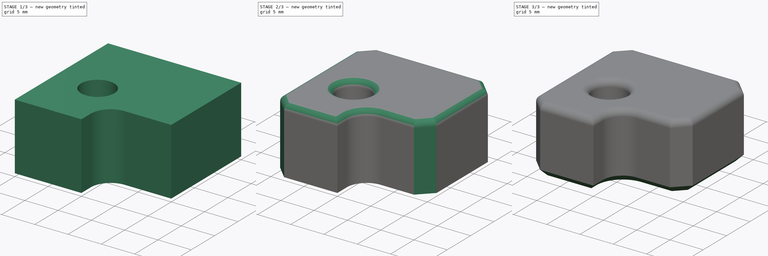
[diagram: build sequence overview — one tinted view per stage of 3, left to right]
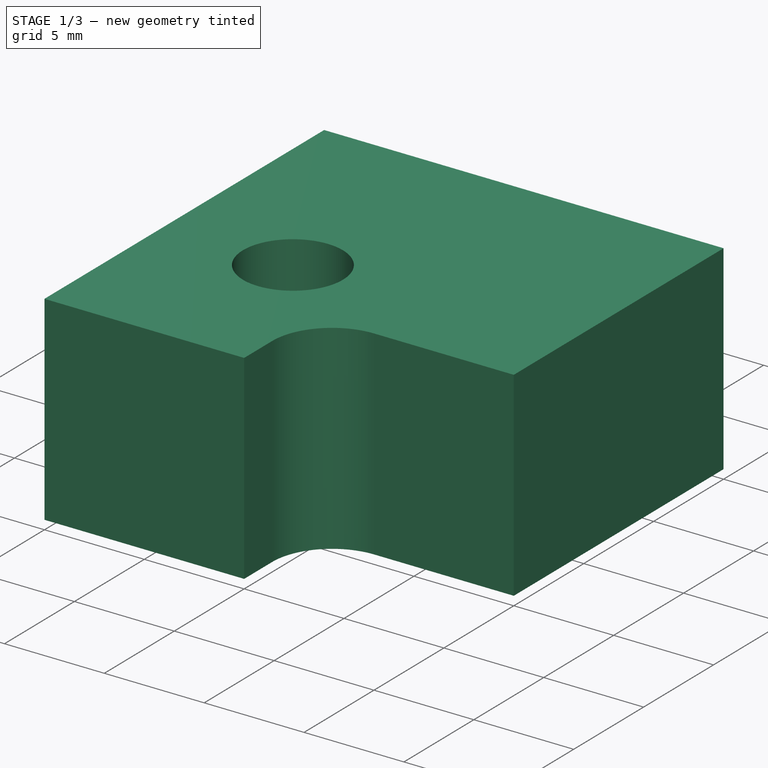
[diagram: stage 1 of 3 — iso view after this stage's code; geometry added in this stage tinted green]
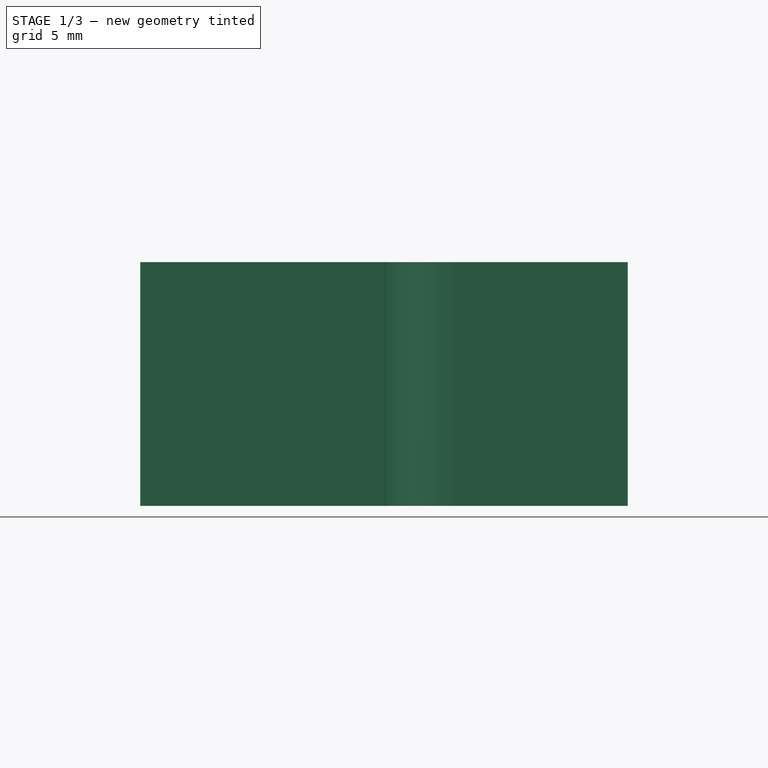
[diagram: stage 1 of 3 — front view after this stage's code; geometry added in this stage tinted green]
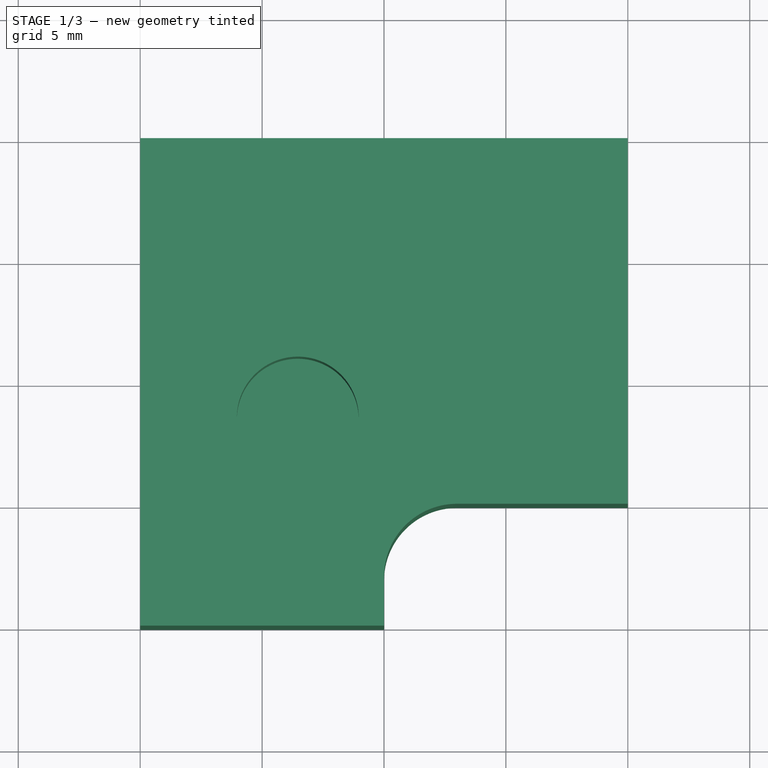
[diagram: stage 1 of 3 — top view after this stage's code; geometry added in this stage tinted green]
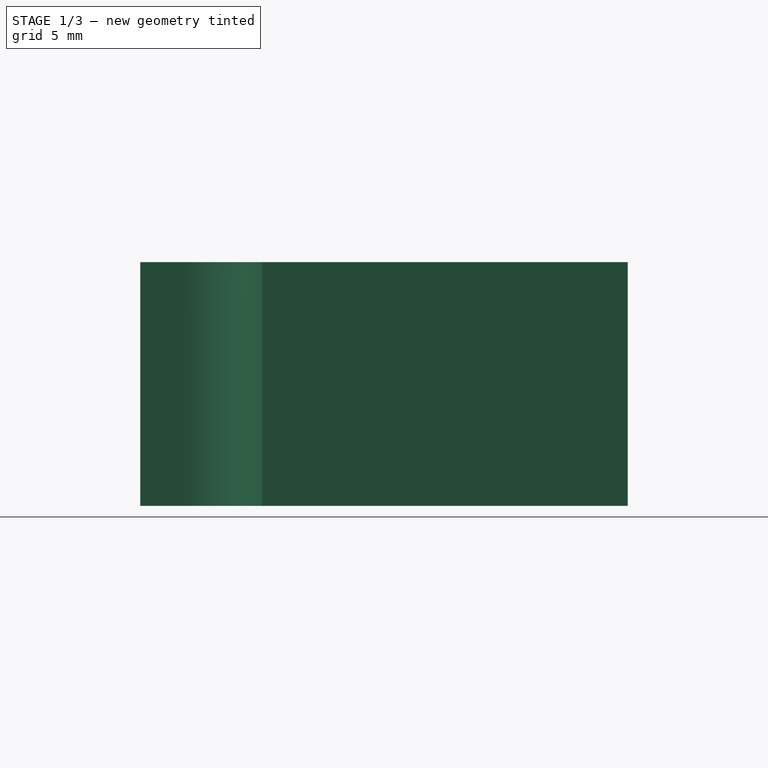
[diagram: stage 1 of 3 — right view after this stage's code; geometry added in this stage tinted green]
FCSTD DOCUMENT  (FreeCAD 0.18R15841 (Git))
Label: Test_Block_00
License: All rights reserved
LicenseURL: http://en.wikipedia.org/wiki/All_rights_reserved
objects: Sketcher::SketchObject×4, PartDesign::Chamfer×3, PartDesign::Pocket×2, PartDesign::CoordinateSystem×2, PartDesign::Fillet×2, PartDesign::Pad×1, App::DocumentObjectGroup×1, PartDesign::Body×1, App::Part×1
note: 18 computed .brp shape members not serialized (recipe doc carries the construction recipe); baked Part::Feature solids carry a one-line shape summary decoded from their .brp

FEATURE [Sketcher::SketchObject] Sketch
  MapMode = 5
  Support = -> [XY_Plane001]
  sketch-geometry (6):
    g0: LineSegment StartX=0 StartY=-2e-16 StartZ=0 EndX=0 EndY=20 EndZ=0
    g1: LineSegment StartX=0 StartY=20 StartZ=0 EndX=20 EndY=20 EndZ=0
    g2: LineSegment StartX=20 StartY=20 StartZ=0 EndX=20 EndY=5 EndZ=0
    g3: LineSegment StartX=20 StartY=5 StartZ=0 EndX=10 EndY=5 EndZ=0
    g4: LineSegment StartX=10 StartY=5 StartZ=0 EndX=10 EndY=0 EndZ=0
    g5: LineSegment StartX=10 StartY=-2e-16 StartZ=0 EndX=0 EndY=-2e-16 EndZ=0
  constraints (17):
    c: Coincident(g-1,g0)
    c: PointOnObject(g0,g-2)
    c: Coincident(g0,g1)
    c: Horizontal(g1)
    c: Coincident(g1,g2)
    c: Vertical(g2)
    c: Coincident(g2,g3)
    c: Horizontal(g3)
    c: Coincident(g3,g4)
    c: Vertical(g4)
    c: Coincident(g4,g5)
    c: Coincident(g5,g0)
    c: Horizontal(g5)
    c: DistanceX(g5,g5) = 10
    c: DistanceY(g0,g0) = 20
    c: DistanceY(g2,g2) = 15
    c: DistanceX(g1,g1) = 20
FEATURE [PartDesign::Pad] Pad
  ClaimChildren = false
  Length = 10
  Length2 = 100
  Profile = -> Sketch
  Type = 0
FEATURE [Sketcher::SketchObject] Sketch001
  ExternalGeometry = -> [Pad]
  MapMode = 5
  Placement = pos=(0,0,10) rot=(0,0,1;0rad)
  Support = -> [Pad]
  sketch-geometry (2):
    g0: Circle CenterX=6.46447 CenterY=8.53553 CenterZ=0 NormalX=0 NormalY=0 NormalZ=1 AngleXU=0 Radius=2.5
    g1: LineSegment [constr] StartX=6.46447 StartY=8.53553 StartZ=0 EndX=10 EndY=5 EndZ=0
  constraints (5):
    c: Coincident(g1,g0)
    c: Coincident(g1,g-3)
    c: Radius(g0) = 2.5
    c: Angle(g1,g-3) = 2.35619
    c: Distance(g1) = 5
FEATURE [PartDesign::Pocket] Pocket
  BaseFeature = -> Pad
  ClaimChildren = false
  Length = 5
  Length2 = 100
  Profile = -> Sketch001
  Type = 0
FEATURE [Sketcher::SketchObject] Sketch002
  ExternalGeometry = -> [Pocket]
  MapMode = 5
  Placement = pos=(0,0,5) rot=(0,0,1;0rad)
  Support = -> [Pocket]
  sketch-geometry (2):
    g0: LineSegment StartX=6.46447 StartY=8.53553 StartZ=0 EndX=8.46447 EndY=8.53553 EndZ=0
    g1: LineSegment StartX=6.46447 StartY=8.53553 StartZ=0 EndX=6.46447 EndY=9.53553 EndZ=0
  constraints (6):
    c: Coincident(g0,g-3)
    c: Horizontal(g0)
    c: Coincident(g1,g0)
    c: Vertical(g1)
    c: DistanceX(g0,g0) = 2
    c: DistanceY(g1,g1) = 1
FEATURE [App::DocumentObjectGroup] Constraints
FEATURE [PartDesign::CoordinateSystem] LCS_0
  AttacherType = Attacher::AttachEngine3D
FEATURE [PartDesign::CoordinateSystem] LCS_1
  AttacherType = Attacher::AttachEngine3D
  MapMode = 49
  Placement = pos=(6.46447,8.53553,5) rot=(0,0,1;0rad)
  Support = -> [Sketch002]
FEATURE [PartDesign::Fillet] Fillet
  Base = -> Pocket [Edge18]
  BaseFeature = -> Pocket
  Radius = 3
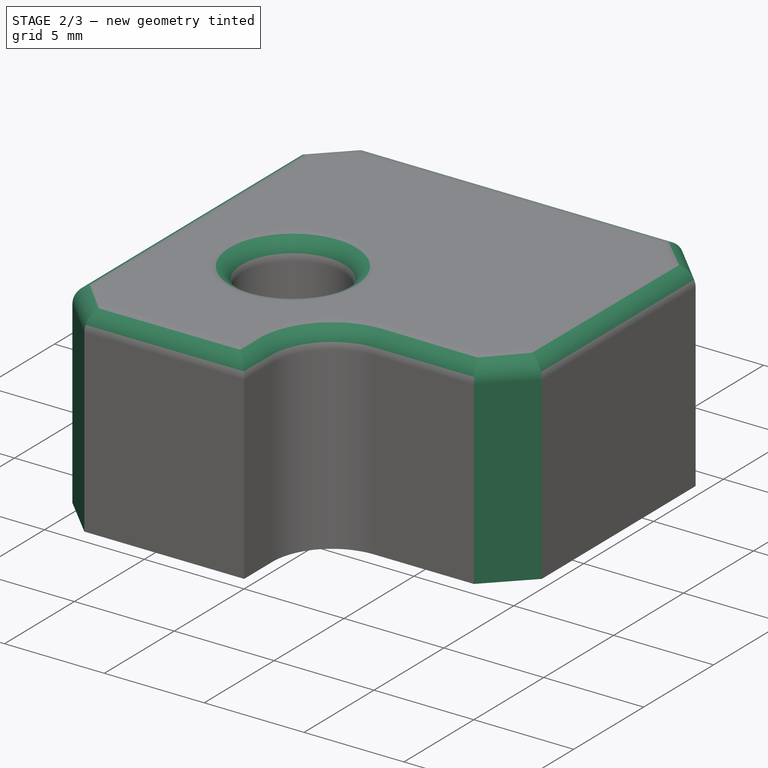
[diagram: stage 2 of 3 — iso view after this stage's code; geometry added in this stage tinted green]
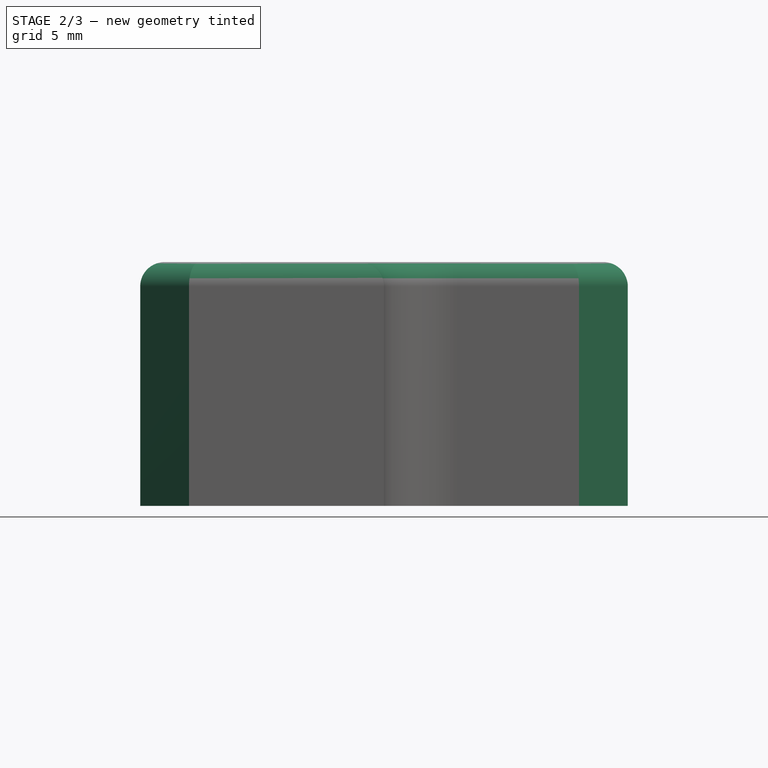
[diagram: stage 2 of 3 — front view after this stage's code; geometry added in this stage tinted green]
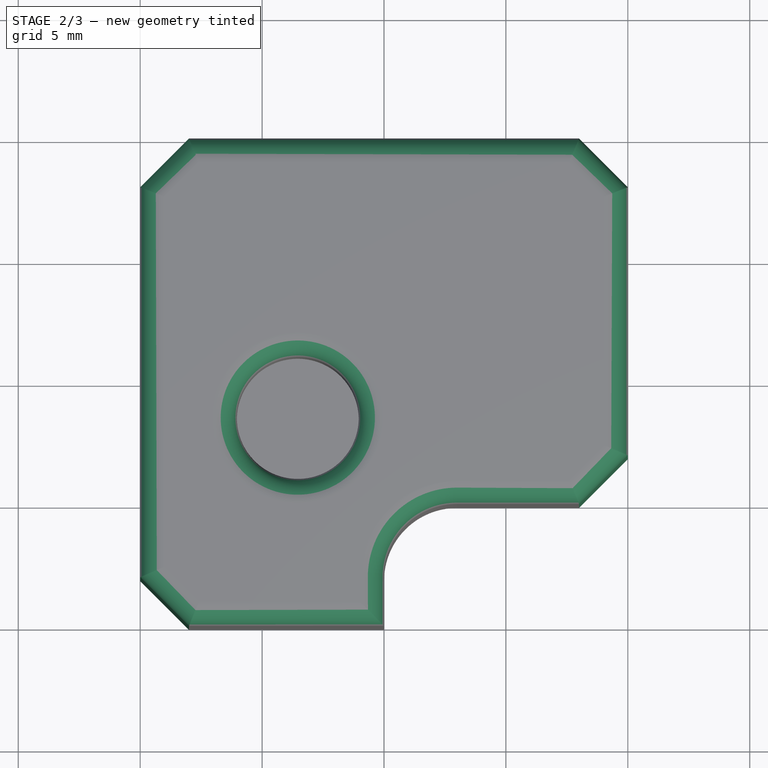
[diagram: stage 2 of 3 — top view after this stage's code; geometry added in this stage tinted green]
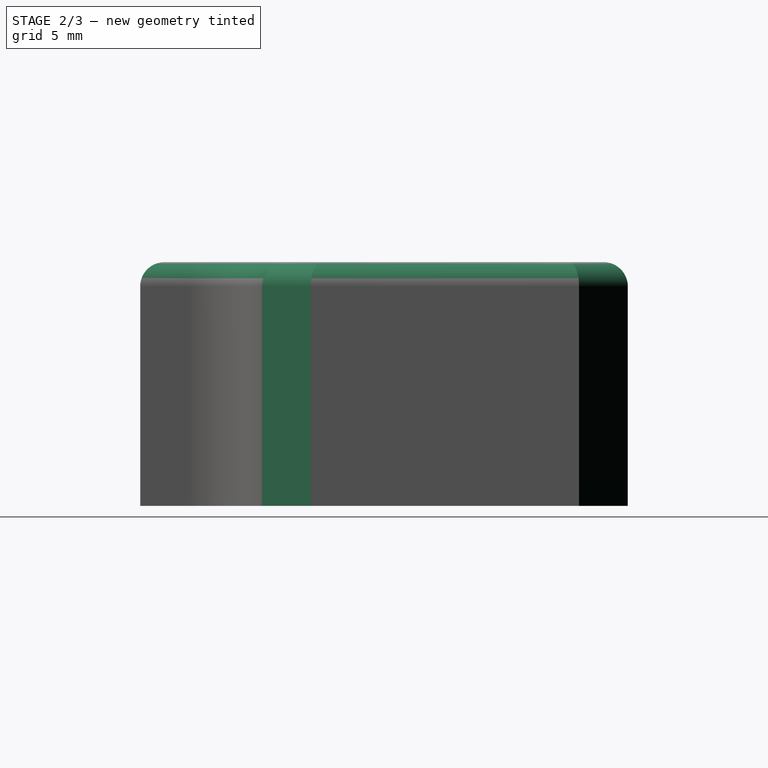
[diagram: stage 2 of 3 — right view after this stage's code; geometry added in this stage tinted green]
FEATURE [PartDesign::Chamfer] Chamfer
  Base = -> Fillet [Edge19,Edge9,Edge13,Edge17]
  BaseFeature = -> Fillet
  Size = 2
FEATURE [PartDesign::Fillet] Fillet001
  Base = -> Chamfer [Face13]
  BaseFeature = -> Chamfer
  Radius = 1
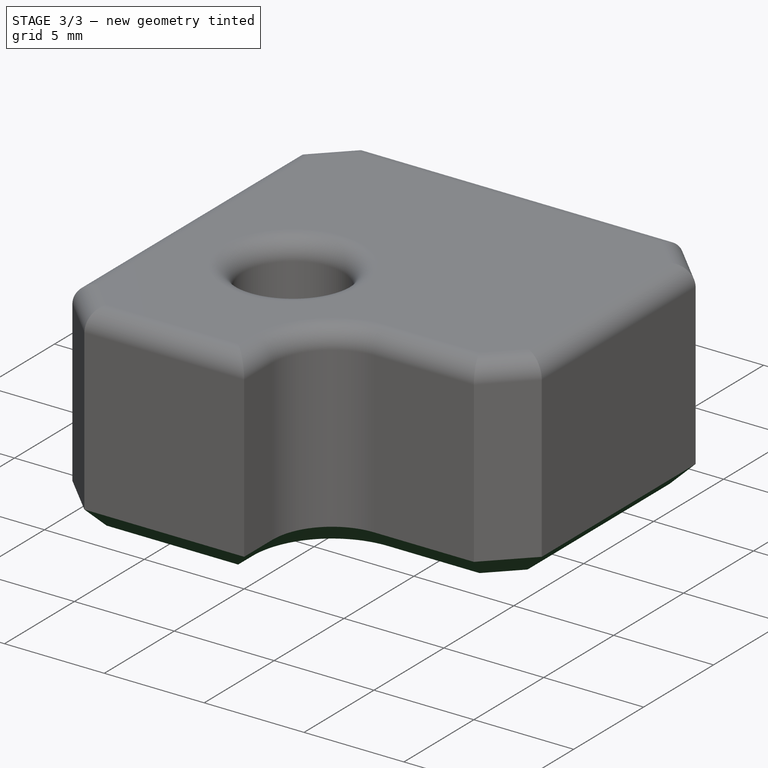
[diagram: stage 3 of 3 — iso view after this stage's code; geometry added in this stage tinted green]
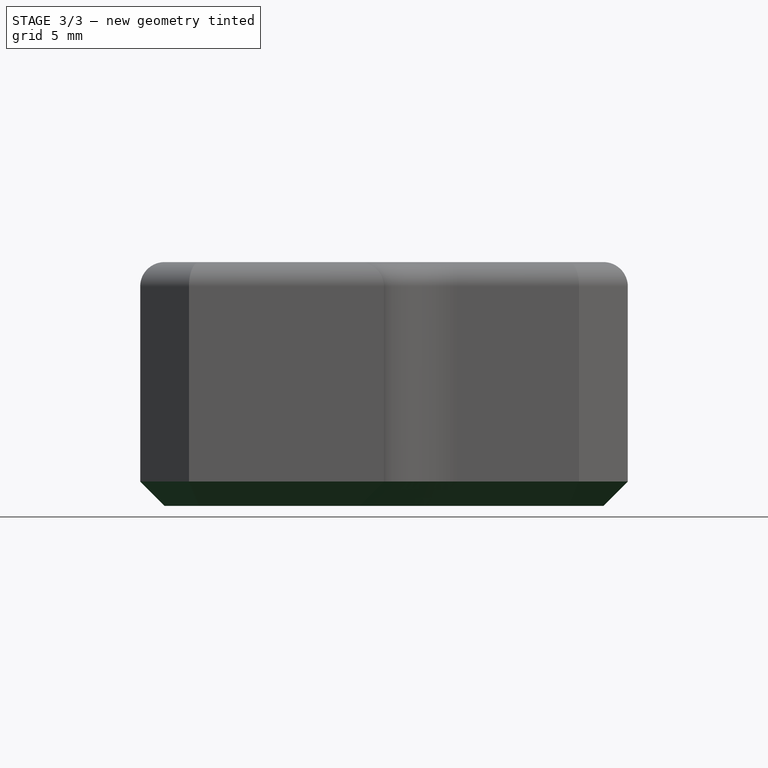
[diagram: stage 3 of 3 — front view after this stage's code; geometry added in this stage tinted green]
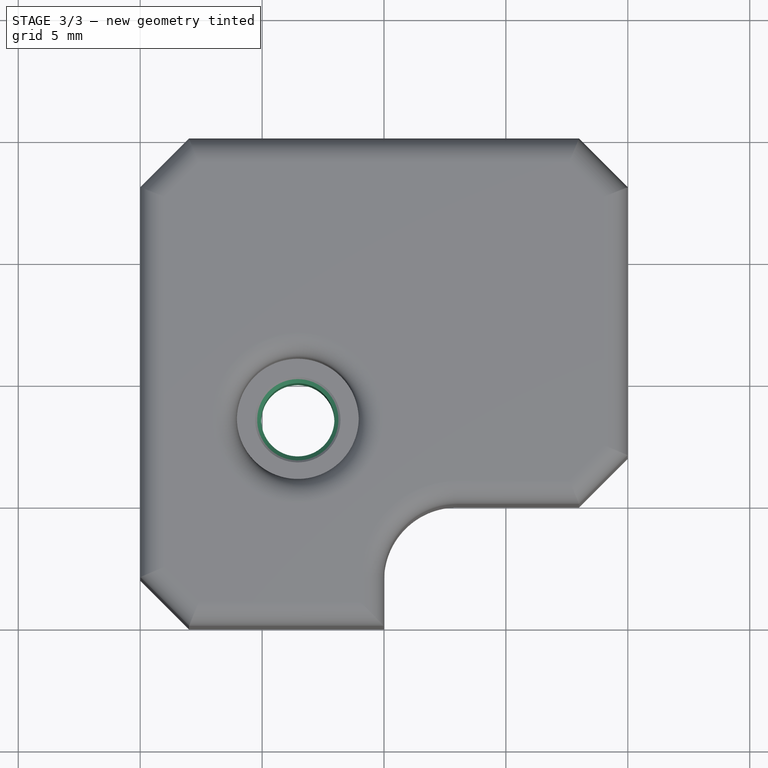
[diagram: stage 3 of 3 — top view after this stage's code; geometry added in this stage tinted green]
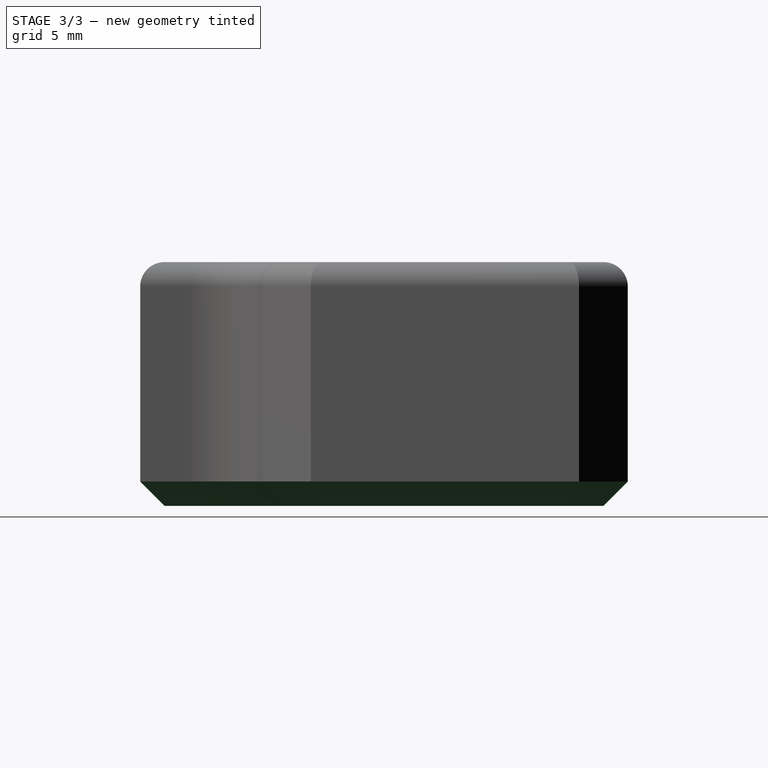
[diagram: stage 3 of 3 — right view after this stage's code; geometry added in this stage tinted green]
FEATURE [PartDesign::Chamfer] Chamfer001
  Base = -> Fillet001 [Face4]
  BaseFeature = -> Fillet001
  Size = 1
FEATURE [Sketcher::SketchObject] Sketch003
  ExternalGeometry = -> [Chamfer001]
  MapMode = 5
  Placement = pos=(0,0,0) rot=(1,0,0;3.14159rad)
  Support = -> [Chamfer001]
  sketch-geometry (1):
    g0: Circle CenterX=6.46447 CenterY=-8.53553 CenterZ=0 NormalX=0 NormalY=0 NormalZ=1 AngleXU=0 Radius=1.5
  constraints (2):
    c: Coincident(g0,g-3)
    c: Radius(g0) = 1.5
FEATURE [PartDesign::Pocket] Pocket001
  BaseFeature = -> Chamfer001
  ClaimChildren = false
  Length = 5
  Length2 = 100
  Profile = -> Sketch003
  Type = 2
FEATURE [PartDesign::Chamfer] Chamfer002
  Base = -> Pocket001 [Edge33,Edge66]
  BaseFeature = -> Pocket001
  Size = 0.25
FEATURE [PartDesign::Body] Body
  Group = -> [Sketch,Pad,Sketch001,Pocket,Sketch002,Fillet,Chamfer,Fillet001,Chamfer001,Sketch003,Pocket001,Chamfer002]
  Origin = -> Origin001
  Tip = -> Chamfer002
FEATURE [App::Part] Model
  Group = -> [Constraints,LCS_0,Body,LCS_1]
  Origin = -> Origin002
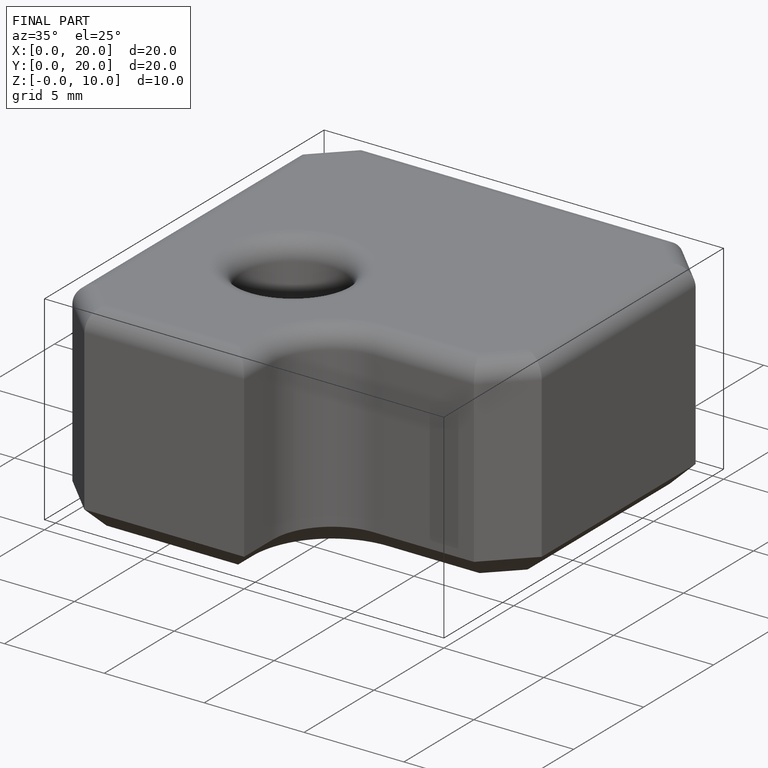
[diagram: finished part — iso view with bounding-box wireframe]
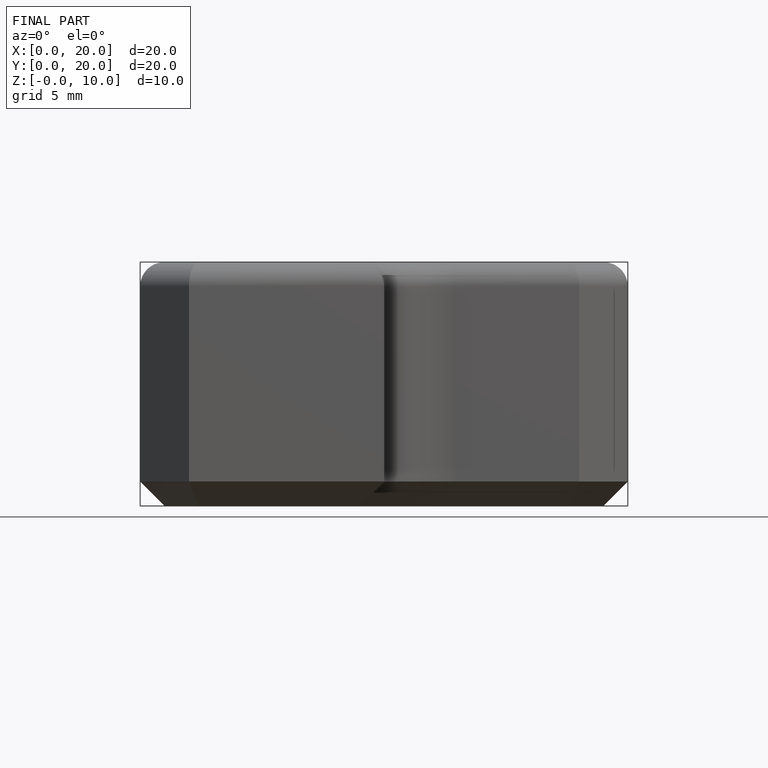
[diagram: finished part — front view with bounding-box wireframe]
